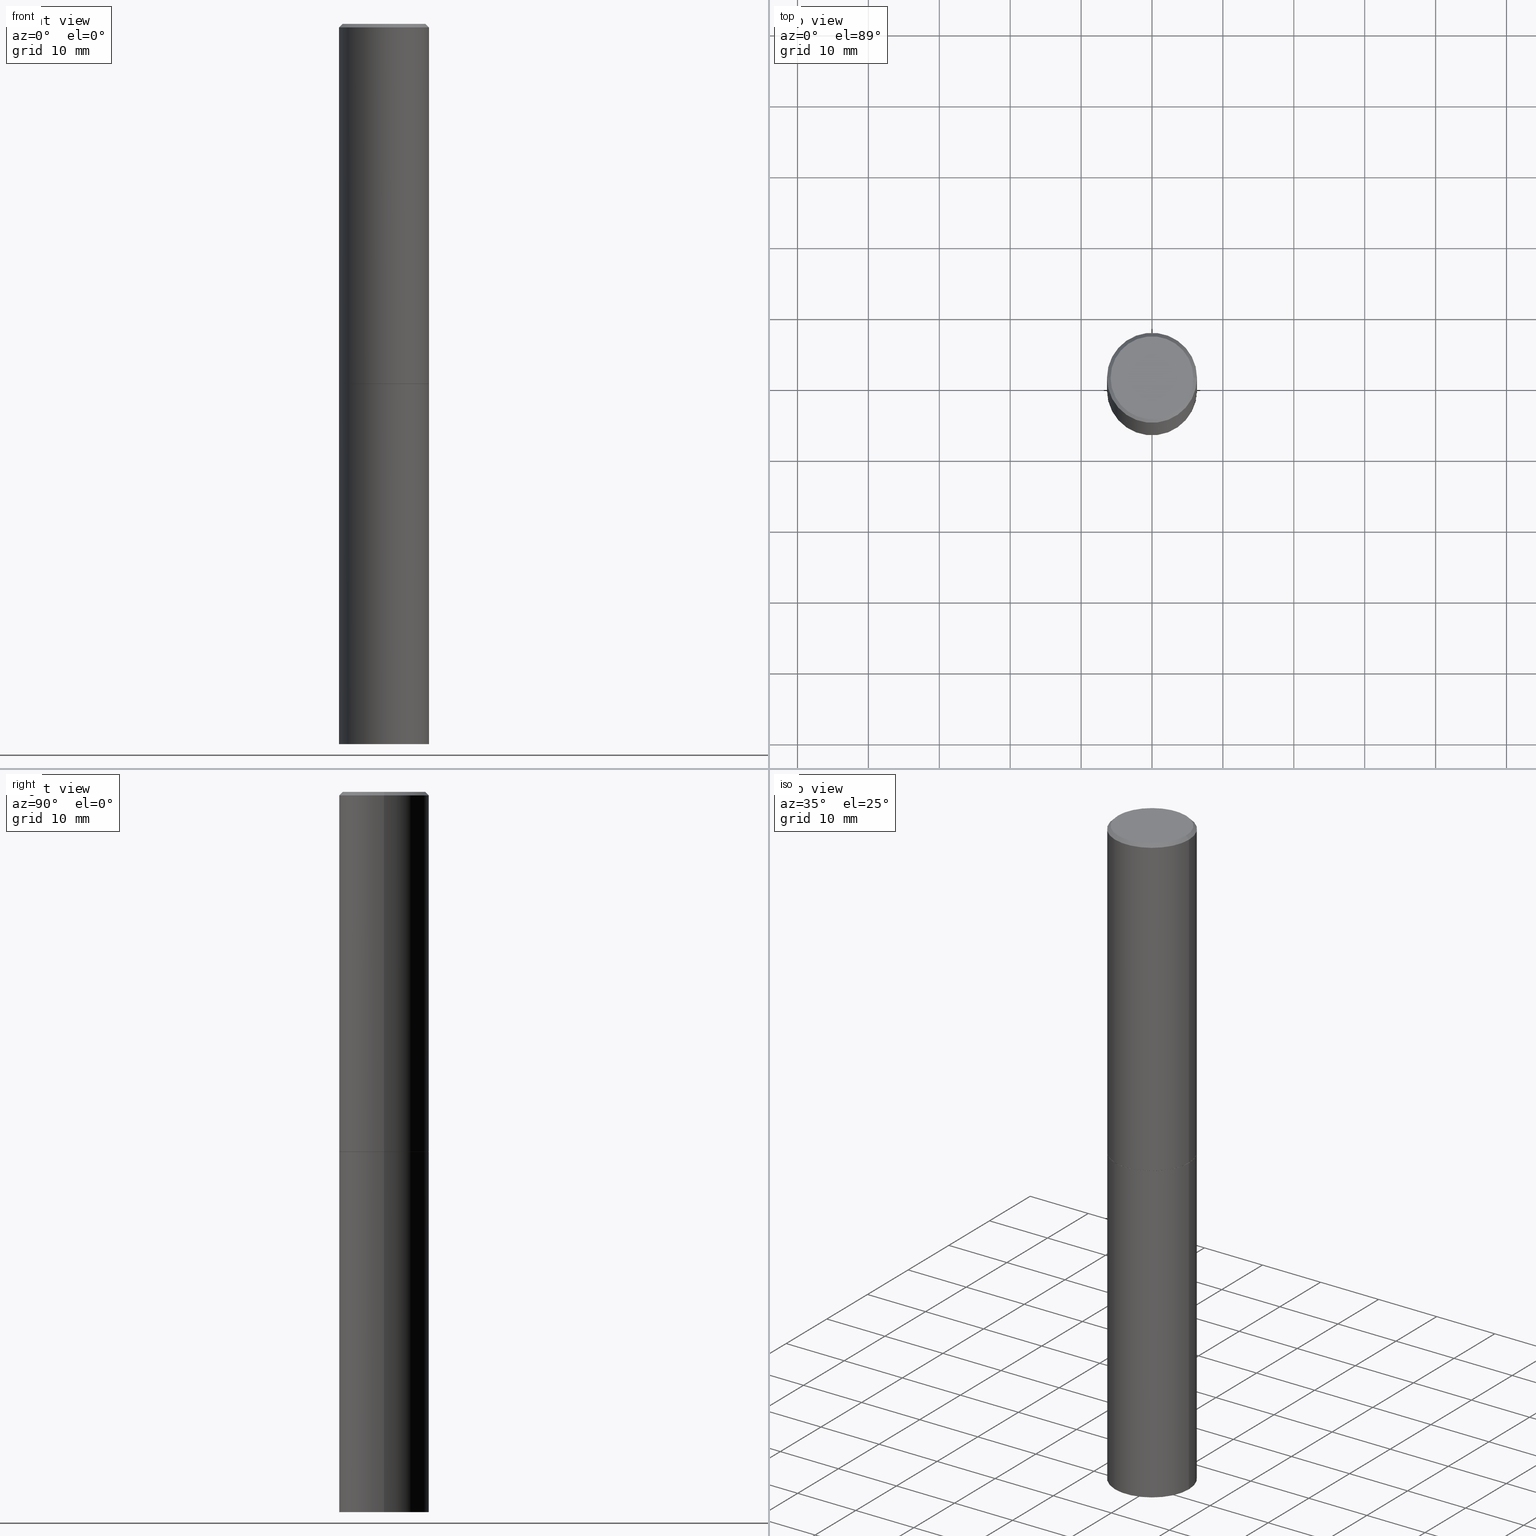
[diagram: canonical four-view strip — front | top / right | iso, engineering-drawing reading convention]
A machine part, canonical four-view strip (front | top / right | iso — engineering-drawing reading convention). The complete STEP part file that produces these views, byte-faithful:
ISO-10303-21;
HEADER;
FILE_DESCRIPTION (( 'STEP AP203' ),
    '1' );
FILE_NAME ('34741.STEP',
    '2024-02-27T17:24:57',
    ( '' ),
    ( '' ),
    'SwSTEP 2.0',
    'SolidWorks 2023',
    '' );
FILE_SCHEMA (( 'CONFIG_CONTROL_DESIGN' ));
ENDSEC;

DATA;
#1 = PERSON_AND_ORGANIZATION_ROLE ( 'creator' ) ;
#2 = CARTESIAN_POINT ( 'NONE',  ( 4.888492143564087591E-29, -6.979471196347447369E-15, -1.998999999999999888 ) ) ;
#3 = CLOSED_SHELL ( 'NONE', ( #57, #9, #168, #359, #338, #353, #269, #289 ) ) ;
#4 = APPLICATION_CONTEXT ( 'configuration controlled 3d designs of mechanical parts and assemblies' ) ;
#5 = CC_DESIGN_PERSON_AND_ORGANIZATION_ASSIGNMENT ( #316, #95, ( #357 ) ) ;
#6 = DIRECTION ( 'NONE',  ( -2.445468806185136597E-29, 3.491481338843145583E-15, 1.000000000000000000 ) ) ;
#7 = CIRCLE ( 'NONE', #314, 0.2500000000000000000 ) ;
#8 = LINE ( 'NONE', #68, #218 ) ;
#9 = ADVANCED_FACE ( 'NONE', ( #38 ), #62, .T. ) ;
#10 = APPROVAL_STATUS ( 'not_yet_approved' ) ;
#11 = FACE_OUTER_BOUND ( 'NONE', #330, .T. ) ;
#12 = DIRECTION ( 'NONE',  ( -2.445468806185136877E-29, 3.491481338843145188E-15, 1.000000000000000000 ) ) ;
#13 = EDGE_CURVE ( 'NONE', #224, #145, #239, .T. ) ;
#14 = LINE ( 'NONE', #63, #326 ) ;
#15 = CONICAL_SURFACE ( 'NONE', #166, 0.2499999999999998057, 0.7853981633974480570 ) ;
#16 = VERTEX_POINT ( 'NONE', #236 ) ;
#17 = CARTESIAN_POINT ( 'NONE',  ( 0.2500000000000000000, -1.571166602479415059E-14, -4.000000000000000000 ) ) ;
#18 = ORIENTED_EDGE ( 'NONE', *, *, #231, .F. ) ;
#19 = LENGTH_MEASURE_WITH_UNIT ( LENGTH_MEASURE( 0.02539999999999999897 ), #354 );
#20 = LINE ( 'NONE', #161, #22 ) ;
#21 = CARTESIAN_POINT ( 'NONE',  ( 0.2499999999999998890, -1.745740669421565889E-15, 1.219044193948983388E-29 ) ) ;
#22 = VECTOR ( 'NONE', #12, 39.37007874015748143 ) ;
#23 = EDGE_CURVE ( 'NONE', #257, #217, #50, .T. ) ;
#24 = CC_DESIGN_APPROVAL ( #255, ( #357 ) ) ;
#25 = ORIENTED_EDGE ( 'NONE', *, *, #332, .T. ) ;
#26 = ORIENTED_EDGE ( 'NONE', *, *, #23, .F. ) ;
#27 = CARTESIAN_POINT ( 'NONE',  ( 0.2489999999999999991, -8.721720384430171040E-15, -1.999999999999999778 ) ) ;
#28 = DIRECTION ( 'NONE',  ( -1.000000000000000000, 6.982962677686265922E-15, -4.876176775795935793E-29 ) ) ;
#29 = EDGE_CURVE ( 'NONE', #337, #70, #162, .T. ) ;
#30 = CIRCLE ( 'NONE', #159, 0.2500000000000000000 ) ;
#31 = ORIENTED_EDGE ( 'NONE', *, *, #175, .F. ) ;
#32 = DIRECTION ( 'NONE',  ( -2.445468806185136597E-29, 3.491481338843145583E-15, 1.000000000000000000 ) ) ;
#33 = EDGE_LOOP ( 'NONE', ( #135, #165 ) ) ;
#34 = DIRECTION ( 'NONE',  ( 2.445468806185136597E-29, -3.491481338843145583E-15, -1.000000000000000000 ) ) ;
#35 = DIRECTION ( 'NONE',  ( 1.000000000000000000, -6.982962677686270655E-15, 0.000000000000000000 ) ) ;
#36 = CARTESIAN_POINT ( 'NONE',  ( 0.000000000000000000, 0.000000000000000000, 0.000000000000000000 ) ) ;
#37 = DIRECTION ( 'NONE',  ( 1.000000000000000000, -6.982962677686270655E-15, 0.000000000000000000 ) ) ;
#38 = FACE_OUTER_BOUND ( 'NONE', #142, .T. ) ;
#39 = APPLICATION_PROTOCOL_DEFINITION ( 'international standard', 'config_control_design', 1994, #206 ) ;
#40 = FACE_OUTER_BOUND ( 'NONE', #219, .T. ) ;
#41 = EDGE_CURVE ( 'NONE', #220, #16, #164, .T. ) ;
#42 = DIRECTION ( 'NONE',  ( -2.445468806185136597E-29, 3.491481338843145583E-15, 1.000000000000000000 ) ) ;
#43 = DIRECTION ( 'NONE',  ( 2.438088387897960049E-29, -3.491481338843145188E-15, -1.000000000000000000 ) ) ;
#44 = CIRCLE ( 'NONE', #310, 0.2500000000000000000 ) ;
#45 = ORIENTED_EDGE ( 'NONE', *, *, #184, .T. ) ;
#46 = CARTESIAN_POINT ( 'NONE',  ( -0.2489999999999999991, -5.208412811295418518E-15, -1.999999999999999778 ) ) ;
#47 = DIRECTION ( 'NONE',  ( -2.445468806185136597E-29, 3.491481338843145583E-15, 1.000000000000000000 ) ) ;
#48 = DIRECTION ( 'NONE',  ( -0.7071067811865473507, 2.468850131082255088E-15, -0.7071067811865476838 ) ) ;
#49 = DIRECTION ( 'NONE',  ( 2.438088387897960049E-29, -3.491481338843145188E-15, -1.000000000000000000 ) ) ;
#50 = CIRCLE ( 'NONE', #81, 0.2500000000000000000 ) ;
#51 = EDGE_CURVE ( 'NONE', #145, #70, #277, .T. ) ;
#52 = FACE_OUTER_BOUND ( 'NONE', #288, .T. ) ;
#53 = EDGE_CURVE ( 'NONE', #16, #70, #65, .T. ) ;
#54 = AXIS2_PLACEMENT_3D ( 'NONE', #156, #268, #355 ) ;
#55 = ORIENTED_EDGE ( 'NONE', *, *, #138, .F. ) ;
#56 = DIRECTION ( 'NONE',  ( 1.000000000000000000, -6.982962677686266711E-15, 4.876225828469314487E-29 ) ) ;
#57 = ADVANCED_FACE ( 'NONE', ( #40 ), #280, .T. ) ;
#58 = ORIENTED_EDGE ( 'NONE', *, *, #241, .F. ) ;
#59 = VECTOR ( 'NONE', #227, 39.37007874015748143 ) ;
#60 = DIRECTION ( 'NONE',  ( -2.445468806185136597E-29, 3.491481338843145583E-15, 1.000000000000000000 ) ) ;
#61 = APPROVAL_PERSON_ORGANIZATION ( #267, #255, #209 ) ;
#62 = CYLINDRICAL_SURFACE ( 'NONE', #287, 0.2499999999999998890 ) ;
#63 = CARTESIAN_POINT ( 'NONE',  ( -0.2499999999999998890, 1.776356839400249676E-15, -1.229733772563726025E-29 ) ) ;
#64 = DIRECTION ( 'NONE',  ( -2.445468806185136597E-29, 3.491481338843145583E-15, 1.000000000000000000 ) ) ;
#65 = CIRCLE ( 'NONE', #333, 0.2499999999999998057 ) ;
#66 = COORDINATED_UNIVERSAL_TIME_OFFSET ( 5, 0, .BEHIND. ) ;
#67 = EDGE_CURVE ( 'NONE', #303, #158, #129, .T. ) ;
#68 = CARTESIAN_POINT ( 'NONE',  ( -0.2500000000000000000, 1.776356839400250465E-15, -1.229733772563726445E-29 ) ) ;
#69 = DIRECTION ( 'NONE',  ( -2.445468806185136597E-29, 3.491481338843145583E-15, 1.000000000000000000 ) ) ;
#70 = VERTEX_POINT ( 'NONE', #247 ) ;
#71 = AXIS2_PLACEMENT_3D ( 'NONE', #305, #254, #308 ) ;
#72 = LOCAL_TIME ( 12, 24, 57.00000000000000000, #245 ) ;
#73 = ADVANCED_FACE ( 'NONE', ( #270 ), #190, .T. ) ;
#74 = CARTESIAN_POINT ( 'NONE',  ( 0.000000000000000000, 0.000000000000000000, 0.000000000000000000 ) ) ;
#75 = DIRECTION ( 'NONE',  ( 1.000000000000000000, -6.982962677686266711E-15, 0.000000000000000000 ) ) ;
#76 = DIRECTION ( 'NONE',  ( 0.7071067811866199593, -2.468850131083015945E-15, 0.7071067811864750752 ) ) ;
#77 = DIRECTION ( 'NONE',  ( -2.445468806185136597E-29, 3.491481338843145583E-15, 1.000000000000000000 ) ) ;
#78 = ORIENTED_EDGE ( 'NONE', *, *, #299, .F. ) ;
#79 = DATE_TIME_ROLE ( 'creation_date' ) ;
#80 = APPROVAL_STATUS ( 'not_yet_approved' ) ;
#81 = AXIS2_PLACEMENT_3D ( 'NONE', #201, #183, #35 ) ;
#82 = ORIENTED_EDGE ( 'NONE', *, *, #283, .T. ) ;
#83 = CARTESIAN_POINT ( 'NONE',  ( 1.606081415867839292E-15, 0.2299999999999997324, -8.009064516888723911E-16 ) ) ;
#84 = COORDINATED_UNIVERSAL_TIME_OFFSET ( 5, 0, .BEHIND. ) ;
#85 = PERSON ( 'UNSPECIFIED', 'UNSPECIFIED', 'UNSPECIFIED', ('UNSPECIFIED'), ('UNSPECIFIED'), ('UNSPECIFIED') ) ;
#86 = CC_DESIGN_APPROVAL ( #147, ( #91 ) ) ;
#87 = CC_DESIGN_PERSON_AND_ORGANIZATION_ASSIGNMENT ( #351, #344, ( #266 ) ) ;
#88 = UNCERTAINTY_MEASURE_WITH_UNIT (LENGTH_MEASURE( 1.000000000000000082E-05 ), #163, 'distance_accuracy_value', 'NONE');
#89 = DIRECTION ( 'NONE',  ( 1.000000000000000000, -6.982962677686266711E-15, 4.876176775795935793E-29 ) ) ;
#90 = AXIS2_PLACEMENT_3D ( 'NONE', #83, #49, #28 ) ;
#91 = PRODUCT_DEFINITION ( 'UNKNOWN', '', #266, #118 ) ;
#92 = AXIS2_PLACEMENT_3D ( 'NONE', #36, #143, #243 ) ;
#93 = MANIFOLD_SOLID_BREP ( 'Body-Move/Copy2[1]', #122 ) ;
#94 = DIRECTION ( 'NONE',  ( -2.445468806185136597E-29, 3.491481338843145583E-15, 1.000000000000000000 ) ) ;
#95 = PERSON_AND_ORGANIZATION_ROLE ( 'classification_officer' ) ;
#96 = MANIFOLD_SOLID_BREP ( 'Body-Move/Copy2[2]', #3 ) ;
#97 = ORIENTED_EDGE ( 'NONE', *, *, #104, .T. ) ;
#98 = CARTESIAN_POINT ( 'NONE',  ( 4.890937612370272633E-29, -6.982962677686290376E-15, -1.999999999999999778 ) ) ;
#99 = DIRECTION ( 'NONE',  ( 1.000000000000000000, -6.982962677686266711E-15, 0.000000000000000000 ) ) ;
#100 = EDGE_LOOP ( 'NONE', ( #366, #55, #306, #178 ) ) ;
#101 = CARTESIAN_POINT ( 'NONE',  ( -0.2499999999999998057, 1.675911042644702196E-15, -0.02000000000000006287 ) ) ;
#102 = DIRECTION ( 'NONE',  ( 1.000000000000000000, -6.982962677686266711E-15, 4.876225828469314487E-29 ) ) ;
#103 = ORIENTED_EDGE ( 'NONE', *, *, #53, .F. ) ;
#104 = EDGE_CURVE ( 'NONE', #257, #115, #20, .T. ) ;
#105 = AXIS2_PLACEMENT_3D ( 'NONE', #317, #182, #137 ) ;
#106 = ORIENTED_EDGE ( 'NONE', *, *, #111, .F. ) ;
#107 = PRODUCT_RELATED_PRODUCT_CATEGORY ( 'detail', '', ( #207 ) ) ;
#108 = FACE_OUTER_BOUND ( 'NONE', #348, .T. ) ;
#109 = LINE ( 'NONE', #246, #256 ) ;
#110 = PERSON_AND_ORGANIZATION_ROLE ( 'design_owner' ) ;
#111 = EDGE_CURVE ( 'NONE', #70, #16, #356, .T. ) ;
#112 = COORDINATED_UNIVERSAL_TIME_OFFSET ( 5, 0, .BEHIND. ) ;
#113 = CIRCLE ( 'NONE', #54, 0.2489999999999999991 ) ;
#114 = DIRECTION ( 'NONE',  ( 1.000000000000000000, -6.982962677686266711E-15, 0.000000000000000000 ) ) ;
#115 = VERTEX_POINT ( 'NONE', #187 ) ;
#116 = ADVANCED_FACE ( 'NONE', ( #313 ), #120, .T. ) ;
#117 = AXIS2_PLACEMENT_3D ( 'NONE', #291, #6, #128 ) ;
#118 = DESIGN_CONTEXT ( 'detailed design', #4, 'design' ) ;
#119 = CARTESIAN_POINT ( 'NONE',  ( 4.890937612370288923E-31, -6.982962677686312563E-17, -0.02000000000000006287 ) ) ;
#120 = CYLINDRICAL_SURFACE ( 'NONE', #179, 0.2500000000000000000 ) ;
#121 = ORIENTED_EDGE ( 'NONE', *, *, #51, .F. ) ;
#122 = CLOSED_SHELL ( 'NONE', ( #309, #73, #352, #116 ) ) ;
#123 = CARTESIAN_POINT ( 'NONE',  ( 4.890937612370273194E-29, -6.982962677686291165E-15, -2.000000000000000000 ) ) ;
#124 = DIRECTION ( 'NONE',  ( -1.000000000000000000, 6.982962677686266711E-15, 0.000000000000000000 ) ) ;
#125 = ORIENTED_EDGE ( 'NONE', *, *, #41, .F. ) ;
#126 = CARTESIAN_POINT ( 'NONE',  ( 1.745740669421664299E-15, 0.2499999999999860389, -4.000000000000000888 ) ) ;
#127 = ORIENTED_EDGE ( 'NONE', *, *, #231, .T. ) ;
#128 = DIRECTION ( 'NONE',  ( 1.000000000000000000, -6.982962677686266711E-15, 0.000000000000000000 ) ) ;
#129 = CIRCLE ( 'NONE', #271, 0.2489999999999999991 ) ;
#130 = CARTESIAN_POINT ( 'NONE',  ( 4.890937612370288923E-31, -6.982962677686312563E-17, -0.02000000000000006287 ) ) ;
#131 = CARTESIAN_POINT ( 'NONE',  ( 0.2499999999999998057, -1.784954126219744611E-15, -0.02000000000000006287 ) ) ;
#132 = DIRECTION ( 'NONE',  ( -2.445468806185136597E-29, 3.491481338843145583E-15, 1.000000000000000000 ) ) ;
#133 = AXIS2_PLACEMENT_3D ( 'NONE', #74, #47, #325 ) ;
#134 = CARTESIAN_POINT ( 'NONE',  ( 0.2500000000000000000, -8.725211865769014047E-15, -1.998999999999999888 ) ) ;
#135 = ORIENTED_EDGE ( 'NONE', *, *, #241, .T. ) ;
#136 = ORIENTED_EDGE ( 'NONE', *, *, #111, .T. ) ;
#137 = DIRECTION ( 'NONE',  ( 1.000000000000000000, -6.982962677686265922E-15, 4.876176775795935793E-29 ) ) ;
#138 = EDGE_CURVE ( 'NONE', #220, #337, #194, .T. ) ;
#139 = APPROVAL_PERSON_ORGANIZATION ( #339, #147, #197 ) ;
#140 = ORIENTED_EDGE ( 'NONE', *, *, #184, .F. ) ;
#141 = FACE_OUTER_BOUND ( 'NONE', #244, .T. ) ;
#142 = EDGE_LOOP ( 'NONE', ( #25, #45, #106, #121 ) ) ;
#143 = DIRECTION ( 'NONE',  ( 0.000000000000000000, 0.000000000000000000, 1.000000000000000000 ) ) ;
#144 = ORGANIZATION ( 'UNSPECIFIED', 'UNSPECIFIED', '' ) ;
#145 = VERTEX_POINT ( 'NONE', #134 ) ;
#146 = CARTESIAN_POINT ( 'NONE',  ( -1.043851414335219820E-46, 1.490343170380447200E-32, 4.268512490100411279E-18 ) ) ;
#147 = APPROVAL ( #80, 'UNSPECIFIED' ) ;
#148 = DIRECTION ( 'NONE',  ( 1.000000000000000000, -6.982962677686266711E-15, 0.000000000000000000 ) ) ;
#149 = DIRECTION ( 'NONE',  ( -2.445468806185136597E-29, 3.491481338843145583E-15, 1.000000000000000000 ) ) ;
#150 = PRODUCT_DEFINITION_SHAPE ( 'NONE', 'NONE',  #91 ) ;
#151 = AXIS2_PLACEMENT_3D ( 'NONE', #2, #77, #114 ) ;
#152 = DIRECTION ( 'NONE',  ( 1.000000000000000000, -6.982962677686266711E-15, 0.000000000000000000 ) ) ;
#153 = LOCAL_TIME ( 12, 24, 57.00000000000000000, #66 ) ;
#154 = CARTESIAN_POINT ( 'NONE',  ( 9.781875224740546387E-29, -1.396592535537258233E-14, -4.000000000000000000 ) ) ;
#155 = CC_DESIGN_PERSON_AND_ORGANIZATION_ASSIGNMENT ( #230, #238, ( #266 ) ) ;
#156 = CARTESIAN_POINT ( 'NONE',  ( 4.890937612370272633E-29, -6.982962677686290376E-15, -1.999999999999999778 ) ) ;
#157 = APPROVAL_DATE_TIME ( #250, #286 ) ;
#158 = VERTEX_POINT ( 'NONE', #46 ) ;
#159 = AXIS2_PLACEMENT_3D ( 'NONE', #154, #358, #37 ) ;
#160 = DIRECTION ( 'NONE',  ( 1.000000000000000000, -6.982962677686266711E-15, 0.000000000000000000 ) ) ;
#161 = CARTESIAN_POINT ( 'NONE',  ( 0.2500000000000000000, -1.745740669421566678E-15, 1.219044193948983948E-29 ) ) ;
#162 = LINE ( 'NONE', #131, #59 ) ;
#163 =( CONVERSION_BASED_UNIT ( 'INCH', #19 ) LENGTH_UNIT ( ) NAMED_UNIT ( #181 ) );
#164 = LINE ( 'NONE', #101, #363 ) ;
#165 = ORIENTED_EDGE ( 'NONE', *, *, #215, .T. ) ;
#166 = AXIS2_PLACEMENT_3D ( 'NONE', #130, #295, #265 ) ;
#167 = AXIS2_PLACEMENT_3D ( 'NONE', #279, #173, #290 ) ;
#168 = ADVANCED_FACE ( 'NONE', ( #108 ), #15, .T. ) ;
#169 = EDGE_LOOP ( 'NONE', ( #18, #272, #97, #198 ) ) ;
#170 = CALENDAR_DATE ( 2024, 27, 2 ) ;
#171 = PERSON_AND_ORGANIZATION ( #85, #144 ) ;
#172 = CALENDAR_DATE ( 2024, 27, 2 ) ;
#173 = DIRECTION ( 'NONE',  ( 2.438088387897960049E-29, -3.491481338843145188E-15, -1.000000000000000000 ) ) ;
#174 = VECTOR ( 'NONE', #364, 39.37007874015748143 ) ;
#175 = EDGE_CURVE ( 'NONE', #217, #257, #30, .T. ) ;
#176 = PERSON_AND_ORGANIZATION ( #85, #144 ) ;
#177 = ORIENTED_EDGE ( 'NONE', *, *, #29, .T. ) ;
#178 = ORIENTED_EDGE ( 'NONE', *, *, #53, .T. ) ;
#179 = AXIS2_PLACEMENT_3D ( 'NONE', #264, #60, #346 ) ;
#180 = EDGE_CURVE ( 'NONE', #158, #303, #113, .T. ) ;
#181 = DIMENSIONAL_EXPONENTS ( 1.000000000000000000, 0.000000000000000000, 0.000000000000000000, 0.000000000000000000, 0.000000000000000000, 0.000000000000000000, 0.000000000000000000 ) ;
#182 = DIRECTION ( 'NONE',  ( -2.438088387897960049E-29, 3.491481338843145188E-15, 1.000000000000000000 ) ) ;
#183 = DIRECTION ( 'NONE',  ( -2.445468806185136597E-29, 3.491481338843145583E-15, 1.000000000000000000 ) ) ;
#184 = EDGE_CURVE ( 'NONE', #224, #16, #14, .T. ) ;
#185 = CALENDAR_DATE ( 2024, 27, 2 ) ;
#186 = CYLINDRICAL_SURFACE ( 'NONE', #71, 0.2500000000000000000 ) ;
#187 = CARTESIAN_POINT ( 'NONE',  ( 0.2500000000000000000, -8.728703347107857054E-15, -2.000000000000000000 ) ) ;
#188 = LOCAL_TIME ( 12, 24, 57.00000000000000000, #112 ) ;
#189 = CALENDAR_DATE ( 2024, 27, 2 ) ;
#190 = PLANE ( 'NONE',  #202 ) ;
#191 = CC_DESIGN_SECURITY_CLASSIFICATION ( #357, ( #266 ) ) ;
#192 = CARTESIAN_POINT ( 'NONE',  ( 4.890937612370272633E-29, -6.982962677686290376E-15, -1.999999999999999778 ) ) ;
#193 = FACE_OUTER_BOUND ( 'NONE', #33, .T. ) ;
#194 = CIRCLE ( 'NONE', #340, 0.2299999999999997324 ) ;
#195 = PERSON_AND_ORGANIZATION ( #85, #144 ) ;
#196 = LOCAL_TIME ( 12, 24, 57.00000000000000000, #208 ) ;
#197 = APPROVAL_ROLE ( '' ) ;
#198 = ORIENTED_EDGE ( 'NONE', *, *, #215, .F. ) ;
#199 = DATE_AND_TIME ( #252, #234 ) ;
#200 = CONICAL_SURFACE ( 'NONE', #298, 0.2489999999999999991, 0.7853981633975507526 ) ;
#201 = CARTESIAN_POINT ( 'NONE',  ( 9.781875224740546387E-29, -1.396592535537258233E-14, -4.000000000000000000 ) ) ;
#202 = AXIS2_PLACEMENT_3D ( 'NONE', #126, #43, #300 ) ;
#203 = SECURITY_CLASSIFICATION_LEVEL ( 'unclassified' ) ;
#204 = ORIENTED_EDGE ( 'NONE', *, *, #283, .F. ) ;
#205 = PLANE ( 'NONE',  #105 ) ;
#206 = APPLICATION_CONTEXT ( 'configuration controlled 3d designs of mechanical parts and assemblies' ) ;
#207 = PRODUCT ( '34741', '34741', '', ( #223 ) ) ;
#208 = COORDINATED_UNIVERSAL_TIME_OFFSET ( 5, 0, .BEHIND. ) ;
#209 = APPROVAL_ROLE ( '' ) ;
#210 = APPROVAL_PERSON_ORGANIZATION ( #195, #286, #216 ) ;
#211 = CARTESIAN_POINT ( 'NONE',  ( -0.2500000000000000000, -8.698087177129185889E-15, -4.000000000000000000 ) ) ;
#212 = ORIENTED_EDGE ( 'NONE', *, *, #67, .F. ) ;
#213 = CARTESIAN_POINT ( 'NONE',  ( -0.2299999999999997324, 1.640996229256270744E-15, 4.268512490089056766E-18 ) ) ;
#214 = CARTESIAN_POINT ( 'NONE',  ( -1.043851414335219820E-46, 1.490343170380447200E-32, 4.268512490100411279E-18 ) ) ;
#215 = EDGE_CURVE ( 'NONE', #301, #115, #7, .T. ) ;
#216 = APPROVAL_ROLE ( '' ) ;
#217 = VERTEX_POINT ( 'NONE', #211 ) ;
#218 = VECTOR ( 'NONE', #297, 39.37007874015748143 ) ;
#219 = EDGE_LOOP ( 'NONE', ( #274, #281, #259, #204 ) ) ;
#220 = VERTEX_POINT ( 'NONE', #213 ) ;
#221 = LINE ( 'NONE', #249, #232 ) ;
#222 = ORIENTED_EDGE ( 'NONE', *, *, #23, .T. ) ;
#223 = MECHANICAL_CONTEXT ( 'NONE', #206, 'mechanical' ) ;
#224 = VERTEX_POINT ( 'NONE', #322 ) ;
#225 = ORIENTED_EDGE ( 'NONE', *, *, #180, .F. ) ;
#226 = ORIENTED_EDGE ( 'NONE', *, *, #180, .T. ) ;
#227 = DIRECTION ( 'NONE',  ( 0.7071067811865473507, -7.319954787623256045E-15, -0.7071067811865476838 ) ) ;
#228 = CARTESIAN_POINT ( 'NONE',  ( 0.000000000000000000, 0.000000000000000000, 0.000000000000000000 ) ) ;
#229 = ORIENTED_EDGE ( 'NONE', *, *, #51, .T. ) ;
#230 = PERSON_AND_ORGANIZATION ( #85, #144 ) ;
#231 = EDGE_CURVE ( 'NONE', #217, #301, #8, .T. ) ;
#232 = VECTOR ( 'NONE', #336, 39.37007874015748143 ) ;
#233 = SHAPE_DEFINITION_REPRESENTATION ( #150, #237 ) ;
#234 = LOCAL_TIME ( 12, 24, 57.00000000000000000, #84 ) ;
#235 = CARTESIAN_POINT ( 'NONE',  ( 4.890937612370273194E-29, -6.982962677686291165E-15, -2.000000000000000000 ) ) ;
#236 = CARTESIAN_POINT ( 'NONE',  ( -0.2499999999999998057, 1.675911042644702196E-15, -0.02000000000000006287 ) ) ;
#237 = ADVANCED_BREP_SHAPE_REPRESENTATION ( '34741', ( #93, #96, #92 ), #273 ) ;
#238 = PERSON_AND_ORGANIZATION_ROLE ( 'creator' ) ;
#239 = CIRCLE ( 'NONE', #292, 0.2500000000000000000 ) ;
#240 = DATE_AND_TIME ( #189, #153 ) ;
#241 = EDGE_CURVE ( 'NONE', #115, #301, #44, .T. ) ;
#242 = EDGE_LOOP ( 'NONE', ( #140, #261, #229, #103 ) ) ;
#243 = DIRECTION ( 'NONE',  ( 1.000000000000000000, 0.000000000000000000, 0.000000000000000000 ) ) ;
#244 = EDGE_LOOP ( 'NONE', ( #78, #226, #82, #321 ) ) ;
#245 = COORDINATED_UNIVERSAL_TIME_OFFSET ( 5, 0, .BEHIND. ) ;
#246 = CARTESIAN_POINT ( 'NONE',  ( 0.2489999999999999991, -8.721720384430171040E-15, -1.999999999999999778 ) ) ;
#247 = CARTESIAN_POINT ( 'NONE',  ( 0.2499999999999998057, -1.784954126219744611E-15, -0.02000000000000006287 ) ) ;
#248 = EDGE_LOOP ( 'NONE', ( #212, #225 ) ) ;
#249 = CARTESIAN_POINT ( 'NONE',  ( -0.2489999999999999991, -5.213711265643640920E-15, -1.999999999999999778 ) ) ;
#250 = DATE_AND_TIME ( #170, #72 ) ;
#251 = APPROVAL_STATUS ( 'not_yet_approved' ) ;
#252 = CALENDAR_DATE ( 2024, 27, 2 ) ;
#253 = DIRECTION ( 'NONE',  ( -2.445468806185136597E-29, 3.491481338843145583E-15, 1.000000000000000000 ) ) ;
#254 = DIRECTION ( 'NONE',  ( -2.445468806185136597E-29, 3.491481338843145583E-15, 1.000000000000000000 ) ) ;
#255 = APPROVAL ( #10, 'UNSPECIFIED' ) ;
#256 = VECTOR ( 'NONE', #76, 39.37007874015748143 ) ;
#257 = VERTEX_POINT ( 'NONE', #17 ) ;
#258 = CARTESIAN_POINT ( 'NONE',  ( 0.2299999999999997324, -1.681434332853597433E-15, 4.268512490111905999E-18 ) ) ;
#259 = ORIENTED_EDGE ( 'NONE', *, *, #332, .F. ) ;
#260 = DATE_AND_TIME ( #172, #188 ) ;
#261 = ORIENTED_EDGE ( 'NONE', *, *, #13, .T. ) ;
#262 = DIRECTION ( 'NONE',  ( -2.445468806185136597E-29, 3.491481338843145583E-15, 1.000000000000000000 ) ) ;
#263 = APPROVAL_DATE_TIME ( #240, #255 ) ;
#264 = CARTESIAN_POINT ( 'NONE',  ( 0.000000000000000000, 0.000000000000000000, 0.000000000000000000 ) ) ;
#265 = DIRECTION ( 'NONE',  ( -1.000000000000000000, 6.982962677686266711E-15, 0.000000000000000000 ) ) ;
#266 = PRODUCT_DEFINITION_FORMATION_WITH_SPECIFIED_SOURCE ( 'ANY', '', #207, .NOT_KNOWN. ) ;
#267 = PERSON_AND_ORGANIZATION ( #85, #144 ) ;
#268 = DIRECTION ( 'NONE',  ( -2.445468806185136597E-29, 3.491481338843145583E-15, 1.000000000000000000 ) ) ;
#269 = ADVANCED_FACE ( 'NONE', ( #361 ), #205, .F. ) ;
#270 = FACE_OUTER_BOUND ( 'NONE', #362, .T. ) ;
#271 = AXIS2_PLACEMENT_3D ( 'NONE', #192, #132, #75 ) ;
#272 = ORIENTED_EDGE ( 'NONE', *, *, #175, .T. ) ;
#273 =( GEOMETRIC_REPRESENTATION_CONTEXT ( 3 ) GLOBAL_UNCERTAINTY_ASSIGNED_CONTEXT ( ( #88 ) ) GLOBAL_UNIT_ASSIGNED_CONTEXT ( ( #163, #276, #327 ) ) REPRESENTATION_CONTEXT ( 'NONE', 'WORKASPACE' ) );
#274 = ORIENTED_EDGE ( 'NONE', *, *, #67, .T. ) ;
#275 = FACE_OUTER_BOUND ( 'NONE', #100, .T. ) ;
#276 =( NAMED_UNIT ( * ) PLANE_ANGLE_UNIT ( ) SI_UNIT ( $, .RADIAN. ) );
#277 = LINE ( 'NONE', #21, #174 ) ;
#278 = CC_DESIGN_DATE_AND_TIME_ASSIGNMENT ( #260, #79, ( #91 ) ) ;
#279 = CARTESIAN_POINT ( 'NONE',  ( 1.745740669421615390E-15, 0.2499999999999930334, -2.000000000000000888 ) ) ;
#280 = CONICAL_SURFACE ( 'NONE', #341, 0.2489999999999999991, 0.7853981633975507526 ) ;
#281 = ORIENTED_EDGE ( 'NONE', *, *, #299, .T. ) ;
#282 = APPLICATION_PROTOCOL_DEFINITION ( 'international standard', 'config_control_design', 1994, #4 ) ;
#283 = EDGE_CURVE ( 'NONE', #303, #145, #109, .T. ) ;
#284 = CIRCLE ( 'NONE', #151, 0.2500000000000000000 ) ;
#285 = ORIENTED_EDGE ( 'NONE', *, *, #365, .F. ) ;
#286 = APPROVAL ( #251, 'UNSPECIFIED' ) ;
#287 = AXIS2_PLACEMENT_3D ( 'NONE', #228, #343, #89 ) ;
#288 = EDGE_LOOP ( 'NONE', ( #323, #296 ) ) ;
#289 = ADVANCED_FACE ( 'NONE', ( #52 ), #304, .F. ) ;
#290 = DIRECTION ( 'NONE',  ( -1.000000000000000000, 6.982962677686265922E-15, -4.876176775795935793E-29 ) ) ;
#291 = CARTESIAN_POINT ( 'NONE',  ( 4.890937612370288923E-31, -6.982962677686312563E-17, -0.02000000000000006287 ) ) ;
#292 = AXIS2_PLACEMENT_3D ( 'NONE', #318, #64, #350 ) ;
#293 = DATE_TIME_ROLE ( 'classification_date' ) ;
#294 = CARTESIAN_POINT ( 'NONE',  ( -0.2500000000000000000, -8.698087177129185889E-15, -2.000000000000000000 ) ) ;
#295 = DIRECTION ( 'NONE',  ( 2.445468806185136597E-29, -3.491481338843145583E-15, -1.000000000000000000 ) ) ;
#296 = ORIENTED_EDGE ( 'NONE', *, *, #365, .T. ) ;
#297 = DIRECTION ( 'NONE',  ( -2.445468806185136877E-29, 3.491481338843145188E-15, 1.000000000000000000 ) ) ;
#298 = AXIS2_PLACEMENT_3D ( 'NONE', #345, #149, #152 ) ;
#299 = EDGE_CURVE ( 'NONE', #158, #224, #221, .T. ) ;
#300 = DIRECTION ( 'NONE',  ( -1.000000000000000000, 6.982962677686265922E-15, -4.876176775795935793E-29 ) ) ;
#301 = VERTEX_POINT ( 'NONE', #294 ) ;
#302 = PLANE ( 'NONE',  #167 ) ;
#303 = VERTEX_POINT ( 'NONE', #27 ) ;
#304 = PLANE ( 'NONE',  #90 ) ;
#305 = CARTESIAN_POINT ( 'NONE',  ( 0.000000000000000000, 0.000000000000000000, 0.000000000000000000 ) ) ;
#306 = ORIENTED_EDGE ( 'NONE', *, *, #41, .T. ) ;
#307 = CC_DESIGN_DATE_AND_TIME_ASSIGNMENT ( #319, #293, ( #357 ) ) ;
#308 = DIRECTION ( 'NONE',  ( 1.000000000000000000, -6.982962677686266711E-15, 4.876176775795935793E-29 ) ) ;
#309 = ADVANCED_FACE ( 'NONE', ( #11 ), #186, .T. ) ;
#310 = AXIS2_PLACEMENT_3D ( 'NONE', #123, #42, #160 ) ;
#311 = CONICAL_SURFACE ( 'NONE', #342, 0.2499999999999998057, 0.7853981633974480570 ) ;
#312 = APPROVAL_DATE_TIME ( #199, #147 ) ;
#313 = FACE_OUTER_BOUND ( 'NONE', #169, .T. ) ;
#314 = AXIS2_PLACEMENT_3D ( 'NONE', #235, #94, #99 ) ;
#315 = CIRCLE ( 'NONE', #320, 0.2299999999999997324 ) ;
#316 = PERSON_AND_ORGANIZATION ( #85, #144 ) ;
#317 = CARTESIAN_POINT ( 'NONE',  ( 4.890937612370273194E-29, -6.982962677686291165E-15, -2.000000000000000000 ) ) ;
#318 = CARTESIAN_POINT ( 'NONE',  ( 4.888492143564087591E-29, -6.979471196347447369E-15, -1.998999999999999888 ) ) ;
#319 = DATE_AND_TIME ( #185, #196 ) ;
#320 = AXIS2_PLACEMENT_3D ( 'NONE', #214, #253, #56 ) ;
#321 = ORIENTED_EDGE ( 'NONE', *, *, #13, .F. ) ;
#322 = CARTESIAN_POINT ( 'NONE',  ( -0.2500000000000000000, -1.748293572161903489E-15, -1.998999999999999888 ) ) ;
#323 = ORIENTED_EDGE ( 'NONE', *, *, #138, .T. ) ;
#324 = CC_DESIGN_PERSON_AND_ORGANIZATION_ASSIGNMENT ( #176, #1, ( #91 ) ) ;
#325 = DIRECTION ( 'NONE',  ( 1.000000000000000000, -6.982962677686266711E-15, 4.876176775795935793E-29 ) ) ;
#326 = VECTOR ( 'NONE', #349, 39.37007874015748143 ) ;
#327 =( NAMED_UNIT ( * ) SI_UNIT ( $, .STERADIAN. ) SOLID_ANGLE_UNIT ( ) );
#328 = FACE_OUTER_BOUND ( 'NONE', #242, .T. ) ;
#329 = DIRECTION ( 'NONE',  ( 1.000000000000000000, -6.982962677686266711E-15, 0.000000000000000000 ) ) ;
#330 = EDGE_LOOP ( 'NONE', ( #222, #127, #58, #334 ) ) ;
#331 = CARTESIAN_POINT ( 'NONE',  ( 4.890937612370288923E-31, -6.982962677686312563E-17, -0.02000000000000006287 ) ) ;
#332 = EDGE_CURVE ( 'NONE', #145, #224, #284, .T. ) ;
#333 = AXIS2_PLACEMENT_3D ( 'NONE', #331, #32, #148 ) ;
#334 = ORIENTED_EDGE ( 'NONE', *, *, #104, .F. ) ;
#335 = CYLINDRICAL_SURFACE ( 'NONE', #133, 0.2499999999999998890 ) ;
#336 = DIRECTION ( 'NONE',  ( -0.7071067811866199593, 7.493145998870616062E-15, 0.7071067811864750752 ) ) ;
#337 = VERTEX_POINT ( 'NONE', #258 ) ;
#338 = ADVANCED_FACE ( 'NONE', ( #328 ), #335, .T. ) ;
#339 = PERSON_AND_ORGANIZATION ( #85, #144 ) ;
#340 = AXIS2_PLACEMENT_3D ( 'NONE', #146, #262, #102 ) ;
#341 = AXIS2_PLACEMENT_3D ( 'NONE', #98, #69, #329 ) ;
#342 = AXIS2_PLACEMENT_3D ( 'NONE', #119, #34, #124 ) ;
#343 = DIRECTION ( 'NONE',  ( -2.445468806185136597E-29, 3.491481338843145583E-15, 1.000000000000000000 ) ) ;
#344 = PERSON_AND_ORGANIZATION_ROLE ( 'design_supplier' ) ;
#345 = CARTESIAN_POINT ( 'NONE',  ( 4.890937612370272633E-29, -6.982962677686290376E-15, -1.999999999999999778 ) ) ;
#346 = DIRECTION ( 'NONE',  ( 1.000000000000000000, -6.982962677686266711E-15, 4.876176775795935793E-29 ) ) ;
#347 = CC_DESIGN_APPROVAL ( #286, ( #266 ) ) ;
#348 = EDGE_LOOP ( 'NONE', ( #285, #177, #136, #125 ) ) ;
#349 = DIRECTION ( 'NONE',  ( -2.445468806185136877E-29, 3.491481338843145188E-15, 1.000000000000000000 ) ) ;
#350 = DIRECTION ( 'NONE',  ( 1.000000000000000000, -6.982962677686266711E-15, 0.000000000000000000 ) ) ;
#351 = PERSON_AND_ORGANIZATION ( #85, #144 ) ;
#352 = ADVANCED_FACE ( 'NONE', ( #193 ), #302, .F. ) ;
#353 = ADVANCED_FACE ( 'NONE', ( #141 ), #200, .T. ) ;
#354 =( LENGTH_UNIT ( ) NAMED_UNIT ( * ) SI_UNIT ( $, .METRE. ) );
#355 = DIRECTION ( 'NONE',  ( 1.000000000000000000, -6.982962677686266711E-15, 0.000000000000000000 ) ) ;
#356 = CIRCLE ( 'NONE', #117, 0.2499999999999998057 ) ;
#357 = SECURITY_CLASSIFICATION ( '', '', #203 ) ;
#358 = DIRECTION ( 'NONE',  ( -2.445468806185136597E-29, 3.491481338843145583E-15, 1.000000000000000000 ) ) ;
#359 = ADVANCED_FACE ( 'NONE', ( #275 ), #311, .T. ) ;
#360 = CC_DESIGN_PERSON_AND_ORGANIZATION_ASSIGNMENT ( #171, #110, ( #207 ) ) ;
#361 = FACE_OUTER_BOUND ( 'NONE', #248, .T. ) ;
#362 = EDGE_LOOP ( 'NONE', ( #26, #31 ) ) ;
#363 = VECTOR ( 'NONE', #48, 39.37007874015748143 ) ;
#364 = DIRECTION ( 'NONE',  ( -2.445468806185136877E-29, 3.491481338843145188E-15, 1.000000000000000000 ) ) ;
#365 = EDGE_CURVE ( 'NONE', #337, #220, #315, .T. ) ;
#366 = ORIENTED_EDGE ( 'NONE', *, *, #29, .F. ) ;
ENDSEC;
END-ISO-10303-21;
